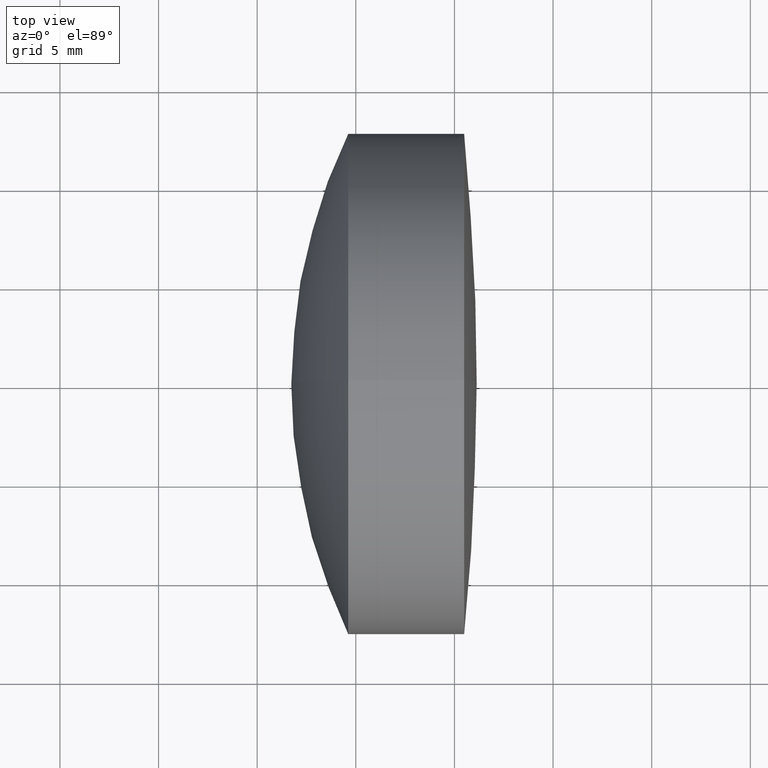
[diagram: clean part render]
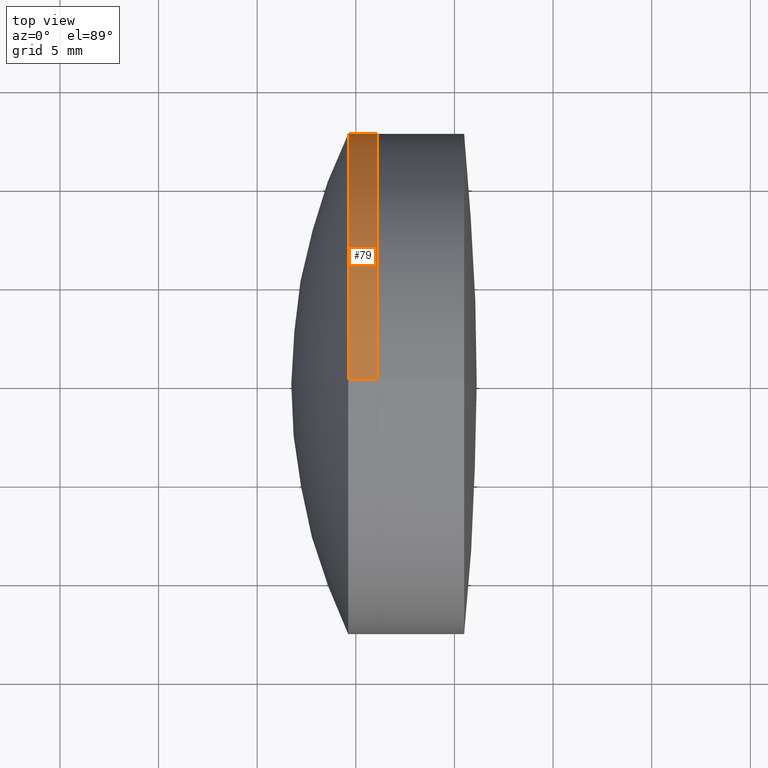
[diagram: same view with one face highlighted and labeled with its STEP entity id]
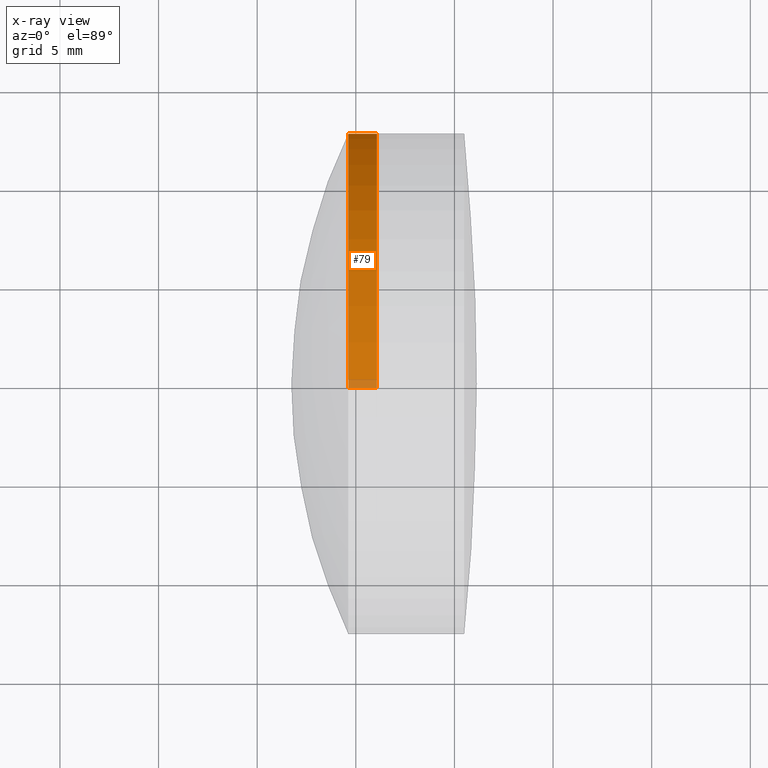
[diagram: x-ray of the same camera — body ghosted, the highlighted face saturated]
A machine part, top view. The second image highlights one B-rep face of the part: STEP entity #79.
The next image is the same camera in x-ray: the body ghosted, the highlighted face saturated — about 3% of this face is hidden behind the body in this view.
In plain terms, the highlighted cylindrical surface (partial cylindrical patch) has radius 12.7 mm, axis along (-1, -0, -0).
Its self-contained STEP definition (entity closure, byte-faithful):
#1 = ORIENTED_EDGE ( 'NONE', *, *, #314, .T. ) ;
#20 = EDGE_CURVE ( 'NONE', #226, #215, #171, .T. ) ;
#29 = CARTESIAN_POINT ( 'NONE',  ( 286.0709410747099400, 0.0000000000000000000, 12.70000000000000800 ) ) ;
#39 = EDGE_CURVE ( 'NONE', #215, #292, #150, .T. ) ;
#45 = CARTESIAN_POINT ( 'NONE',  ( 284.6156968381105800, -1.555301434917138400E-015, 12.70000000000000600 ) ) ;
#56 = VECTOR ( 'NONE', #243, 1000.000000000000000 ) ;
#58 = VECTOR ( 'NONE', #197, 1000.000000000000000 ) ;
#59 = EDGE_LOOP ( 'NONE', ( #1, #310, #340, #92 ) ) ;
#63 = CYLINDRICAL_SURFACE ( 'NONE', #343, 12.70000000000000600 ) ;
#69 = AXIS2_PLACEMENT_3D ( 'NONE', #164, #179, #199 ) ;
#75 = DIRECTION ( 'NONE',  ( 0.0000000000000000000, 0.0000000000000000000, 1.000000000000000000 ) ) ;
#79 = ADVANCED_FACE ( 'NONE', ( #100 ), #63, .T. ) ;
#92 = ORIENTED_EDGE ( 'NONE', *, *, #20, .F. ) ;
#100 = FACE_OUTER_BOUND ( 'NONE', #59, .T. ) ;
#103 = CARTESIAN_POINT ( 'NONE',  ( 124.5233095260452400, 1.555301434917139200E-015, -12.70000000000000600 ) ) ;
#111 = DIRECTION ( 'NONE',  ( -1.000000000000000000, -0.0000000000000000000, -0.0000000000000000000 ) ) ;
#120 = VERTEX_POINT ( 'NONE', #270 ) ;
#134 = EDGE_CURVE ( 'NONE', #120, #292, #203, .T. ) ;
#135 = CARTESIAN_POINT ( 'NONE',  ( 284.6156968381105800, 0.0000000000000000000, -12.69999999999999900 ) ) ;
#150 = CIRCLE ( 'NONE', #207, 12.70000000000000600 ) ;
#164 = CARTESIAN_POINT ( 'NONE',  ( 286.0709410747099400, 0.0000000000000000000, 0.0000000000000000000 ) ) ;
#171 = LINE ( 'NONE', #192, #56 ) ;
#179 = DIRECTION ( 'NONE',  ( -1.000000000000000000, -0.0000000000000000000, -0.0000000000000000000 ) ) ;
#189 = DIRECTION ( 'NONE',  ( 0.0000000000000000000, 0.0000000000000000000, 1.000000000000000000 ) ) ;
#192 = CARTESIAN_POINT ( 'NONE',  ( 124.5233095260452400, 0.0000000000000000000, 12.70000000000000600 ) ) ;
#197 = DIRECTION ( 'NONE',  ( -1.000000000000000000, -0.0000000000000000000, -0.0000000000000000000 ) ) ;
#199 = DIRECTION ( 'NONE',  ( 0.0000000000000000000, 0.0000000000000000000, 1.000000000000000000 ) ) ;
#203 = LINE ( 'NONE', #103, #58 ) ;
#207 = AXIS2_PLACEMENT_3D ( 'NONE', #259, #219, #75 ) ;
#215 = VERTEX_POINT ( 'NONE', #45 ) ;
#219 = DIRECTION ( 'NONE',  ( -1.000000000000000000, -0.0000000000000000000, -0.0000000000000000000 ) ) ;
#226 = VERTEX_POINT ( 'NONE', #29 ) ;
#243 = DIRECTION ( 'NONE',  ( -1.000000000000000000, -0.0000000000000000000, -0.0000000000000000000 ) ) ;
#259 = CARTESIAN_POINT ( 'NONE',  ( 284.6156968381105800, 0.0000000000000000000, 0.0000000000000000000 ) ) ;
#270 = CARTESIAN_POINT ( 'NONE',  ( 286.0709410747099400, 1.555301434917139600E-015, -12.70000000000001000 ) ) ;
#277 = CIRCLE ( 'NONE', #69, 12.70000000000000800 ) ;
#284 = CARTESIAN_POINT ( 'NONE',  ( 124.5233095260452400, 0.0000000000000000000, 0.0000000000000000000 ) ) ;
#292 = VERTEX_POINT ( 'NONE', #135 ) ;
#310 = ORIENTED_EDGE ( 'NONE', *, *, #134, .T. ) ;
#314 = EDGE_CURVE ( 'NONE', #226, #120, #277, .T. ) ;
#340 = ORIENTED_EDGE ( 'NONE', *, *, #39, .F. ) ;
#343 = AXIS2_PLACEMENT_3D ( 'NONE', #284, #111, #189 ) ;